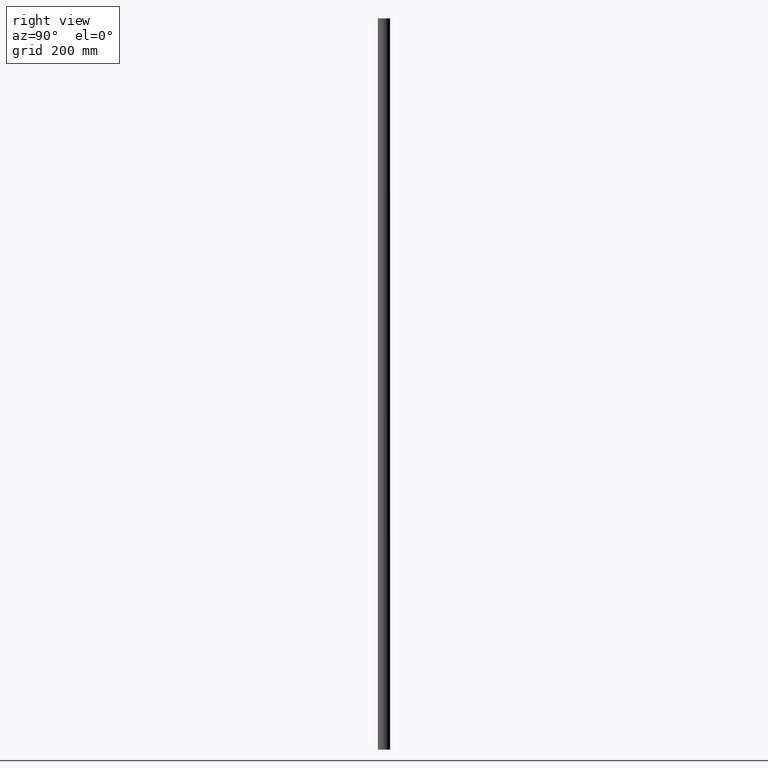
[diagram: clean part render]
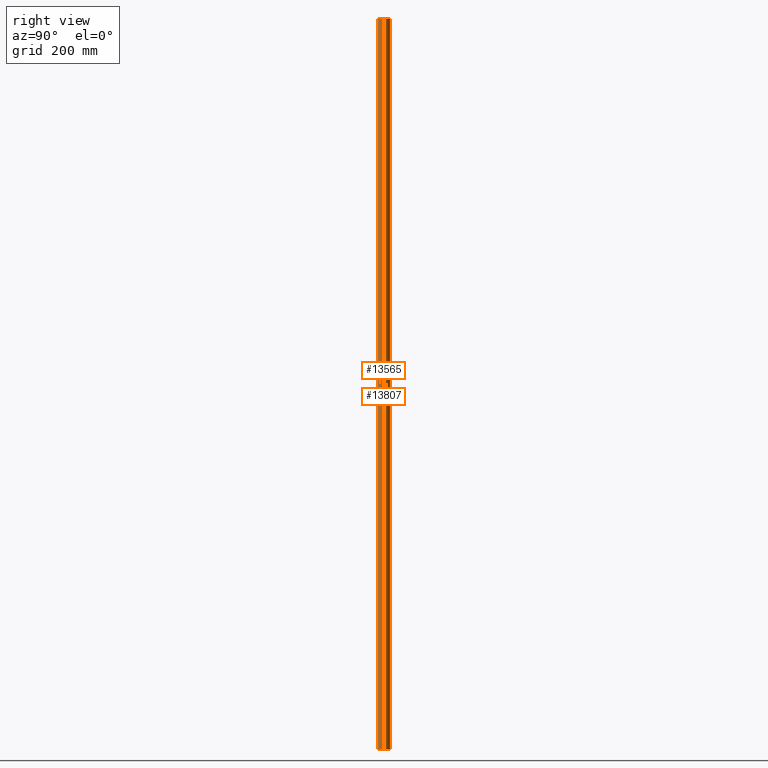
[diagram: same view with one multi-face feature highlighted, each face labeled with its STEP entity id]
A machine part, right view. The highlighted faces form ONE feature: a constant-radius fillet chain: 2 tangent blend faces with common blend radius 21 mm. The faces share edges in the B-rep.
Their STEP definitions:
[1] entity #13565 (Cylinder):
#683 = DIRECTION ( 'NONE',  ( -0.000000000000000000, -0.000000000000000000, -1.000000000000000000 ) ) ;
#1256 = CARTESIAN_POINT ( 'NONE',  ( 0.000000000000000000, 0.000000000000000000, -1250.000000000000000 ) ) ;
#1526 = EDGE_CURVE ( 'NONE', #14537, #11229, #5386, .T. ) ;
#2923 = CARTESIAN_POINT ( 'NONE',  ( -21.00000000000000355, 0.000000000000000000, 1250.000000000000000 ) ) ;
#3280 = CARTESIAN_POINT ( 'NONE',  ( 21.00000000000000355, 2.571758278209442056E-15, 1250.000000000000000 ) ) ;
#4443 = DIRECTION ( 'NONE',  ( 0.000000000000000000, 0.000000000000000000, 1.000000000000000000 ) ) ;
#5235 = ORIENTED_EDGE ( 'NONE', *, *, #1526, .T. ) ;
#5386 = LINE ( 'NONE', #2923, #12260 ) ;
#5997 = CARTESIAN_POINT ( 'NONE',  ( -21.00000000000000355, 0.000000000000000000, 1250.000000000000000 ) ) ;
#6232 = CARTESIAN_POINT ( 'NONE',  ( 21.00000000000000355, 2.571758278209442056E-15, -1250.000000000000000 ) ) ;
#6768 = CYLINDRICAL_SURFACE ( 'NONE', #11809, 21.00000000000000355 ) ;
#7568 = DIRECTION ( 'NONE',  ( -1.000000000000000000, 0.000000000000000000, 0.000000000000000000 ) ) ;
#7708 = LINE ( 'NONE', #9093, #9928 ) ;
#7730 = VERTEX_POINT ( 'NONE', #6232 ) ;
#8413 = EDGE_CURVE ( 'NONE', #11229, #7730, #11645, .T. ) ;
#8567 = DIRECTION ( 'NONE',  ( -0.000000000000000000, -0.000000000000000000, -1.000000000000000000 ) ) ;
#8598 = ORIENTED_EDGE ( 'NONE', *, *, #8806, .F. ) ;
#8806 = EDGE_CURVE ( 'NONE', #14537, #8820, #12218, .T. ) ;
#8820 = VERTEX_POINT ( 'NONE', #3280 ) ;
#9093 = CARTESIAN_POINT ( 'NONE',  ( 21.00000000000000355, 2.571758278209442056E-15, 1250.000000000000000 ) ) ;
#9273 = ORIENTED_EDGE ( 'NONE', *, *, #8413, .T. ) ;
#9577 = FACE_OUTER_BOUND ( 'NONE', #13428, .T. ) ;
#9928 = VECTOR ( 'NONE', #683, 1000.000000000000000 ) ;
#10509 = CARTESIAN_POINT ( 'NONE',  ( 0.000000000000000000, 0.000000000000000000, 1250.000000000000000 ) ) ;
#11229 = VERTEX_POINT ( 'NONE', #15293 ) ;
#11645 = CIRCLE ( 'NONE', #14985, 21.00000000000000355 ) ;
#11809 = AXIS2_PLACEMENT_3D ( 'NONE', #14635, #8567, #7568 ) ;
#12218 = CIRCLE ( 'NONE', #13112, 21.00000000000000355 ) ;
#12260 = VECTOR ( 'NONE', #13452, 1000.000000000000000 ) ;
#13112 = AXIS2_PLACEMENT_3D ( 'NONE', #10509, #4443, #15133 ) ;
#13284 = EDGE_CURVE ( 'NONE', #8820, #7730, #7708, .T. ) ;
#13295 = DIRECTION ( 'NONE',  ( 0.000000000000000000, 0.000000000000000000, 1.000000000000000000 ) ) ;
#13428 = EDGE_LOOP ( 'NONE', ( #14371, #8598, #5235, #9273 ) ) ;
#13452 = DIRECTION ( 'NONE',  ( -0.000000000000000000, -0.000000000000000000, -1.000000000000000000 ) ) ;
#13565 = ADVANCED_FACE ( 'NONE', ( #9577 ), #6768, .T. ) ;
#14327 = DIRECTION ( 'NONE',  ( 1.000000000000000000, 0.000000000000000000, 0.000000000000000000 ) ) ;
#14371 = ORIENTED_EDGE ( 'NONE', *, *, #13284, .F. ) ;
#14537 = VERTEX_POINT ( 'NONE', #5997 ) ;
#14635 = CARTESIAN_POINT ( 'NONE',  ( 0.000000000000000000, 0.000000000000000000, 1250.000000000000000 ) ) ;
#14985 = AXIS2_PLACEMENT_3D ( 'NONE', #1256, #13295, #14327 ) ;
#15133 = DIRECTION ( 'NONE',  ( 1.000000000000000000, 0.000000000000000000, 0.000000000000000000 ) ) ;
#15293 = CARTESIAN_POINT ( 'NONE',  ( -21.00000000000000355, 0.000000000000000000, -1250.000000000000000 ) ) ;
[2] entity #13807 (Cylinder):
#161 = DIRECTION ( 'NONE',  ( 0.000000000000000000, 0.000000000000000000, 1.000000000000000000 ) ) ;
#341 = AXIS2_PLACEMENT_3D ( 'NONE', #3876, #161, #10880 ) ;
#683 = DIRECTION ( 'NONE',  ( -0.000000000000000000, -0.000000000000000000, -1.000000000000000000 ) ) ;
#971 = EDGE_LOOP ( 'NONE', ( #9524, #9916, #2152, #9144 ) ) ;
#1526 = EDGE_CURVE ( 'NONE', #14537, #11229, #5386, .T. ) ;
#1535 = CYLINDRICAL_SURFACE ( 'NONE', #13947, 21.00000000000000355 ) ;
#2152 = ORIENTED_EDGE ( 'NONE', *, *, #8789, .T. ) ;
#2216 = AXIS2_PLACEMENT_3D ( 'NONE', #9281, #11536, #11733 ) ;
#2923 = CARTESIAN_POINT ( 'NONE',  ( -21.00000000000000355, 0.000000000000000000, 1250.000000000000000 ) ) ;
#3094 = CIRCLE ( 'NONE', #2216, 21.00000000000000355 ) ;
#3280 = CARTESIAN_POINT ( 'NONE',  ( 21.00000000000000355, 2.571758278209442056E-15, 1250.000000000000000 ) ) ;
#3876 = CARTESIAN_POINT ( 'NONE',  ( 0.000000000000000000, 0.000000000000000000, 1250.000000000000000 ) ) ;
#4390 = CARTESIAN_POINT ( 'NONE',  ( 0.000000000000000000, 0.000000000000000000, 1250.000000000000000 ) ) ;
#4550 = FACE_OUTER_BOUND ( 'NONE', #971, .T. ) ;
#5386 = LINE ( 'NONE', #2923, #12260 ) ;
#5997 = CARTESIAN_POINT ( 'NONE',  ( -21.00000000000000355, 0.000000000000000000, 1250.000000000000000 ) ) ;
#6232 = CARTESIAN_POINT ( 'NONE',  ( 21.00000000000000355, 2.571758278209442056E-15, -1250.000000000000000 ) ) ;
#7708 = LINE ( 'NONE', #9093, #9928 ) ;
#7730 = VERTEX_POINT ( 'NONE', #6232 ) ;
#8789 = EDGE_CURVE ( 'NONE', #7730, #11229, #3094, .T. ) ;
#8820 = VERTEX_POINT ( 'NONE', #3280 ) ;
#9093 = CARTESIAN_POINT ( 'NONE',  ( 21.00000000000000355, 2.571758278209442056E-15, 1250.000000000000000 ) ) ;
#9144 = ORIENTED_EDGE ( 'NONE', *, *, #1526, .F. ) ;
#9281 = CARTESIAN_POINT ( 'NONE',  ( 0.000000000000000000, 0.000000000000000000, -1250.000000000000000 ) ) ;
#9524 = ORIENTED_EDGE ( 'NONE', *, *, #12245, .F. ) ;
#9916 = ORIENTED_EDGE ( 'NONE', *, *, #13284, .T. ) ;
#9928 = VECTOR ( 'NONE', #683, 1000.000000000000000 ) ;
#10880 = DIRECTION ( 'NONE',  ( 1.000000000000000000, 0.000000000000000000, 0.000000000000000000 ) ) ;
#11229 = VERTEX_POINT ( 'NONE', #15293 ) ;
#11536 = DIRECTION ( 'NONE',  ( 0.000000000000000000, 0.000000000000000000, 1.000000000000000000 ) ) ;
#11733 = DIRECTION ( 'NONE',  ( 1.000000000000000000, 0.000000000000000000, 0.000000000000000000 ) ) ;
#12245 = EDGE_CURVE ( 'NONE', #8820, #14537, #12928, .T. ) ;
#12260 = VECTOR ( 'NONE', #13452, 1000.000000000000000 ) ;
#12928 = CIRCLE ( 'NONE', #341, 21.00000000000000355 ) ;
#13284 = EDGE_CURVE ( 'NONE', #8820, #7730, #7708, .T. ) ;
#13452 = DIRECTION ( 'NONE',  ( -0.000000000000000000, -0.000000000000000000, -1.000000000000000000 ) ) ;
#13807 = ADVANCED_FACE ( 'NONE', ( #4550 ), #1535, .T. ) ;
#13902 = DIRECTION ( 'NONE',  ( -0.000000000000000000, -0.000000000000000000, -1.000000000000000000 ) ) ;
#13947 = AXIS2_PLACEMENT_3D ( 'NONE', #4390, #13902, #14055 ) ;
#14055 = DIRECTION ( 'NONE',  ( -1.000000000000000000, 0.000000000000000000, 0.000000000000000000 ) ) ;
#14537 = VERTEX_POINT ( 'NONE', #5997 ) ;
#15293 = CARTESIAN_POINT ( 'NONE',  ( -21.00000000000000355, 0.000000000000000000, -1250.000000000000000 ) ) ;